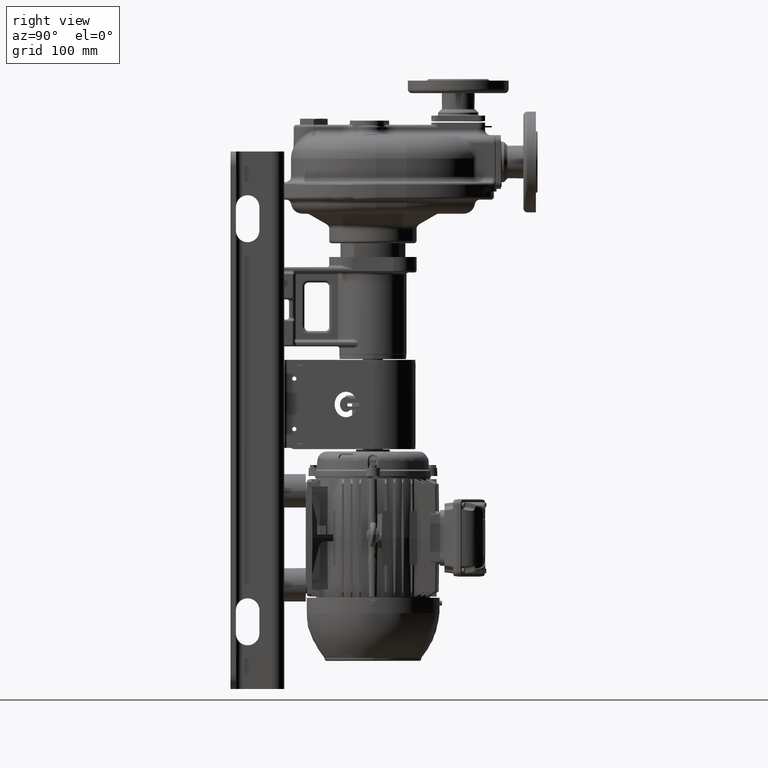
[diagram: clean part render]
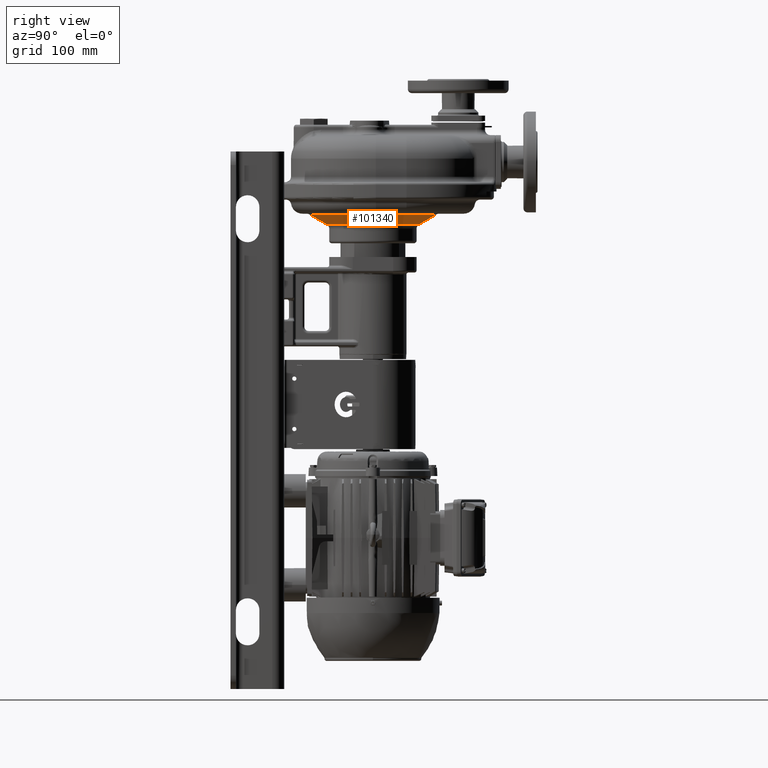
[diagram: same view with one face highlighted and labeled with its STEP entity id]
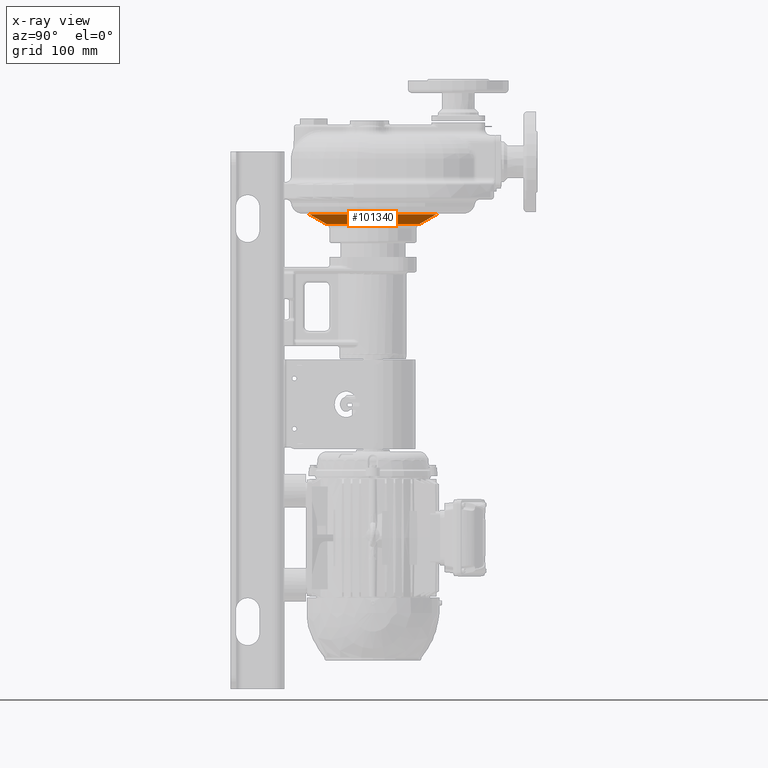
[diagram: x-ray of the same camera — body ghosted, the highlighted face saturated]
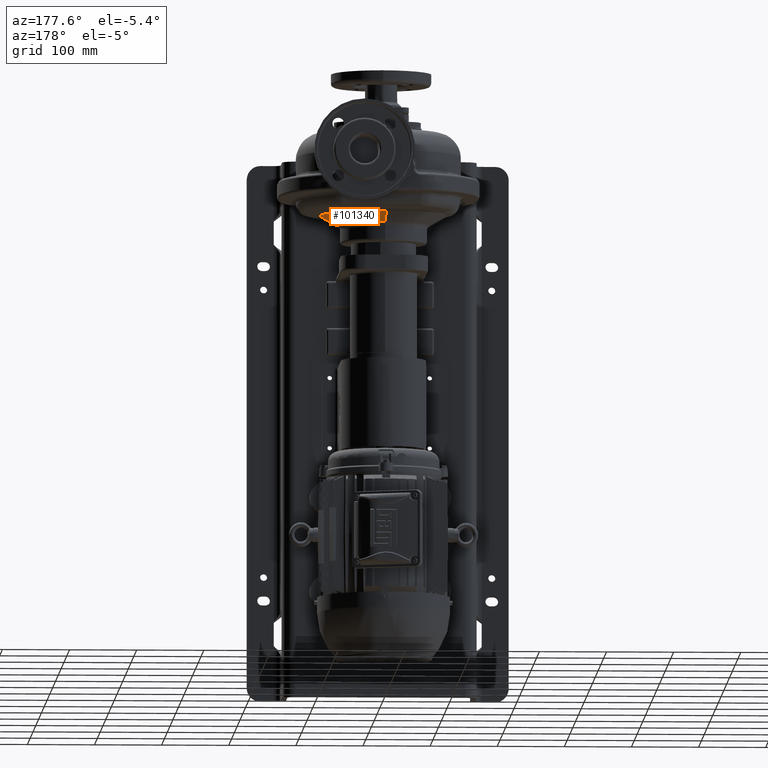
[diagram: same view with one face highlighted and labeled with its STEP entity id]
A machine part, right view. The second image highlights one B-rep face of the part: STEP entity #101340.
The next image is the same camera in x-ray: the body ghosted, the highlighted face saturated — about 0% of this face is hidden behind the body in this view.
A second angle (auxiliary view) of the same face is appended — the face is thin or edge-on in the first view.
In plain terms, the highlighted conical surface has half-angle 60 deg.
Its self-contained STEP definition (entity closure, byte-faithful):
#34727=DIRECTION('',(0.E0,-8.660254037844E-1,5.E-1));
#34728=VECTOR('',#34727,2.923760430703E1);
#34729=CARTESIAN_POINT('',(0.E0,6.3E1,9.180940107676E1));
#34730=LINE('',#34729,#34728);
#34736=DIRECTION('',(0.E0,8.660254037844E-1,5.E-1));
#34737=VECTOR('',#34736,2.923760430703E1);
#34738=CARTESIAN_POINT('',(1.532107161659E-14,2.01E2,9.180940107676E1));
#34739=LINE('',#34738,#34737);
#34812=CARTESIAN_POINT('',(0.E0,1.32E2,1.064282032303E2));
#34813=DIRECTION('',(0.E0,0.E0,-1.E0));
#34814=DIRECTION('',(0.E0,1.E0,0.E0));
#34815=AXIS2_PLACEMENT_3D('',#34812,#34813,#34814);
#34817=CARTESIAN_POINT('',(0.E0,1.32E2,9.180940107676E1));
#34818=DIRECTION('',(0.E0,0.E0,1.E0));
#34819=DIRECTION('',(0.E0,-1.E0,0.E0));
#34820=AXIS2_PLACEMENT_3D('',#34817,#34818,#34819);
#63462=CARTESIAN_POINT('',(0.E0,6.3E1,9.180940107676E1));
#63464=VERTEX_POINT('',#63462);
#63466=CARTESIAN_POINT('',(2.219208644230E-14,2.01E2,9.180940107676E1));
#63468=VERTEX_POINT('',#63466);
#63469=CARTESIAN_POINT('',(1.155092470765E-14,2.263205080757E2,
1.064282032303E2));
#63470=CARTESIAN_POINT('',(0.E0,3.767949192431E1,1.064282032303E2));
#63471=VERTEX_POINT('',#63469);
#63472=VERTEX_POINT('',#63470);
#101328=CARTESIAN_POINT('',(0.E0,1.32E2,9.911880215352E1));
#101329=DIRECTION('',(0.E0,0.E0,1.E0));
#101330=DIRECTION('',(0.E0,-1.E0,0.E0));
#101331=AXIS2_PLACEMENT_3D('',#101328,#101329,#101330);
#101332=CONICAL_SURFACE('',#101331,8.166025403784E1,6.E1);
#101333=ORIENTED_EDGE('',*,*,#100983,.F.);
#101334=ORIENTED_EDGE('',*,*,#101319,.F.);
#101336=ORIENTED_EDGE('',*,*,#101335,.F.);
#101337=ORIENTED_EDGE('',*,*,#101315,.T.);
#101338=EDGE_LOOP('',(#101333,#101334,#101336,#101337));
#101339=FACE_OUTER_BOUND('',#101338,.F.);
#101340=ADVANCED_FACE('',(#101339),#101332,.T.);
#34816=CIRCLE('',#34815,9.432050807569E1);
#34821=CIRCLE('',#34820,6.9E1);
#100983=EDGE_CURVE('',#63471,#63472,#34816,.T.);
#101315=EDGE_CURVE('',#63464,#63472,#34730,.T.);
#101319=EDGE_CURVE('',#63468,#63471,#34739,.T.);
#101335=EDGE_CURVE('',#63464,#63468,#34821,.T.);